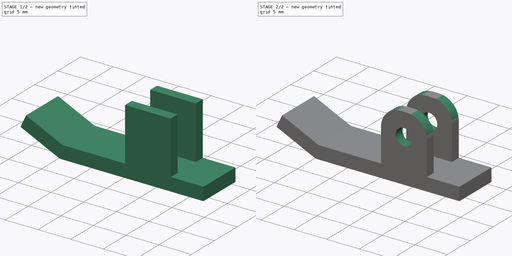
[diagram: build sequence overview — one tinted view per stage of 2, left to right]
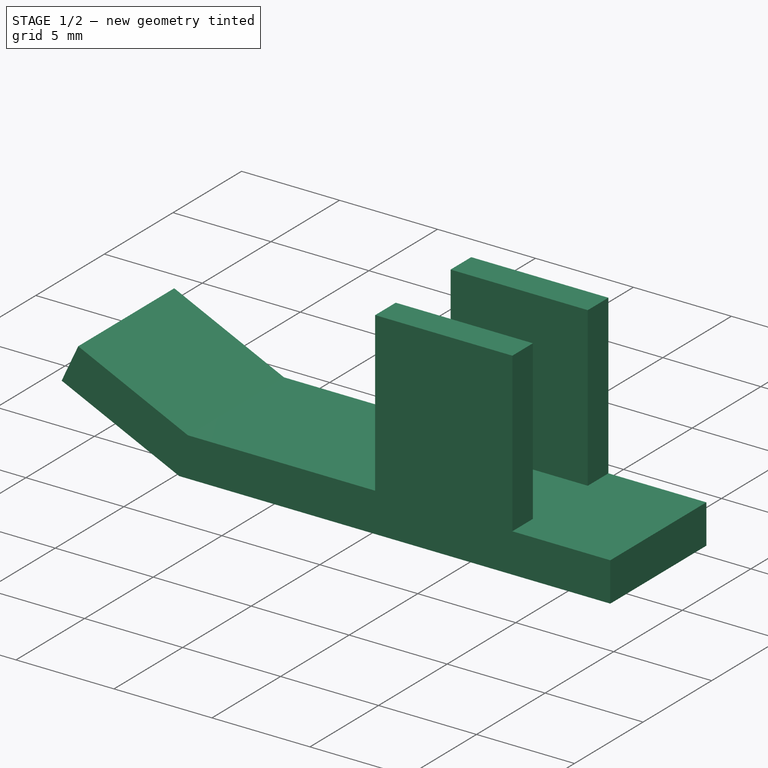
[diagram: stage 1 of 2 — iso view after this stage's code; geometry added in this stage tinted green]
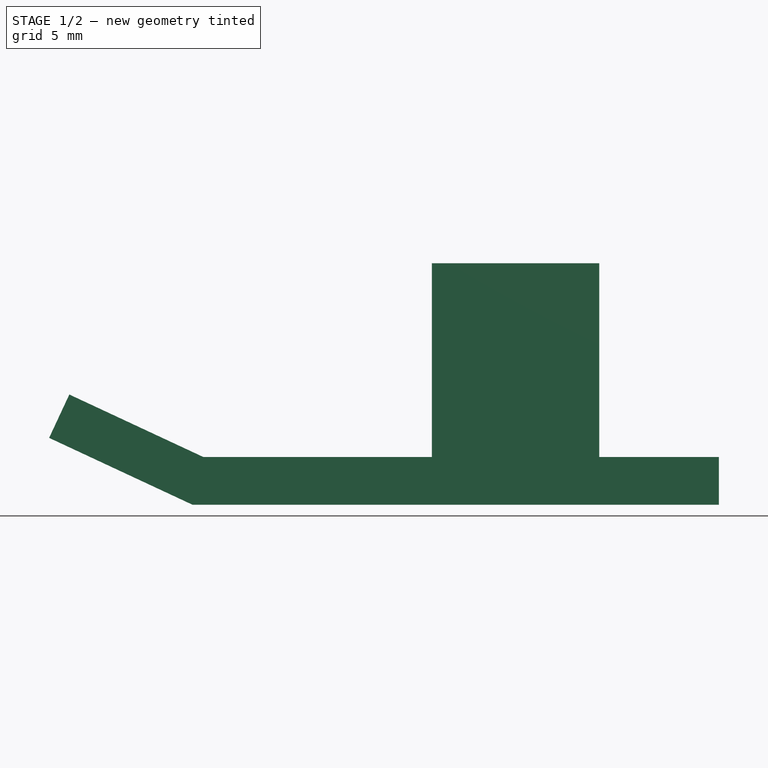
[diagram: stage 1 of 2 — front view after this stage's code; geometry added in this stage tinted green]
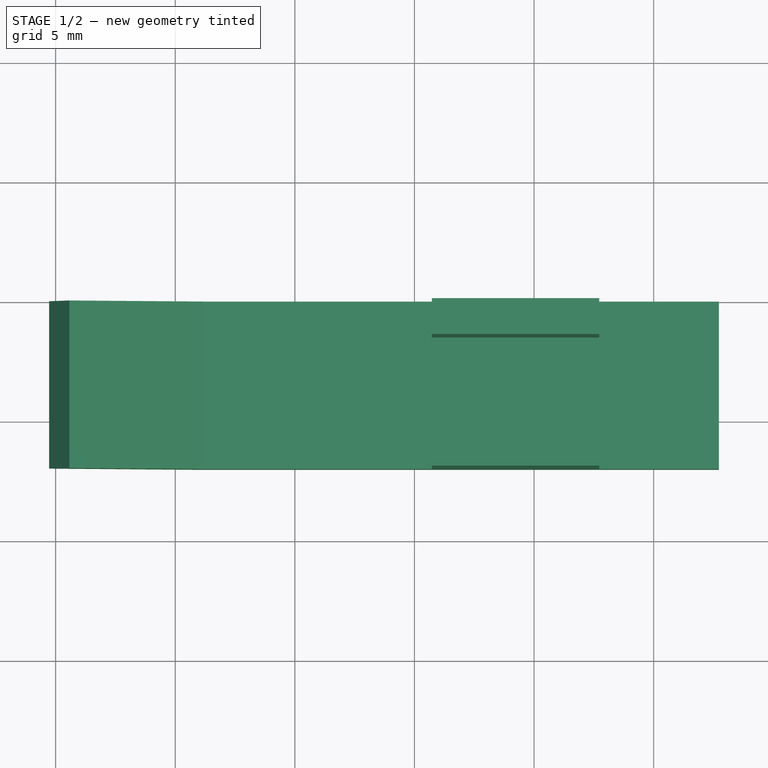
[diagram: stage 1 of 2 — top view after this stage's code; geometry added in this stage tinted green]
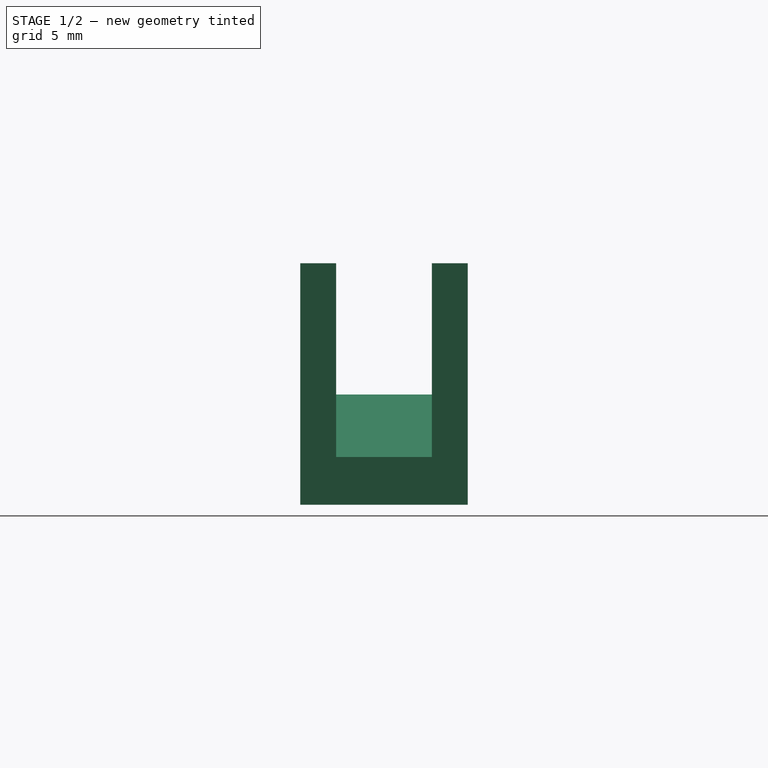
[diagram: stage 1 of 2 — right view after this stage's code; geometry added in this stage tinted green]
FCSTD DOCUMENT  (FreeCAD 0.15R4671 (Git))
Label: Kufen
License: All rights reserved
LicenseURL: http://en.wikipedia.org/wiki/All_rights_reserved
objects: Sketcher::SketchObject×3, PartDesign::Pad×2, PartDesign::Pocket×1, PartDesign::Fillet×1
note: 10 computed .brp shape members not serialized (recipe doc carries the construction recipe); baked Part::Feature solids carry a one-line shape summary decoded from their .brp

FEATURE [Sketcher::SketchObject] Sketch
  Placement = pos=(0,0,0) rot=(-1,0,0;4.71239rad)
  sketch-geometry (6):
    g0: LineSegment StartX=-22.2735 StartY=19.0526 StartZ=0 EndX=-44.2735 EndY=19.0526 EndZ=0
    g1: LineSegment StartX=-44.2735 StartY=19.0526 StartZ=0 EndX=-50.2735 EndY=21.8504 EndZ=0
    g2: LineSegment StartX=-50.2735 StartY=21.8504 StartZ=0 EndX=-49.4283 EndY=23.6631 EndZ=0
    g3: LineSegment StartX=-49.4283 StartY=23.6631 StartZ=0 EndX=-43.8301 EndY=21.0526 EndZ=0
    g4: LineSegment StartX=-43.8301 StartY=21.0526 StartZ=0 EndX=-22.2735 EndY=21.0526 EndZ=0
    g5: LineSegment StartX=-22.2735 StartY=21.0526 StartZ=0 EndX=-22.2735 EndY=19.0526 EndZ=0
  constraints (16):
    c: Horizontal(g0)
    c: Coincident(g0,g1)
    c: Coincident(g1,g2)
    c: Coincident(g2,g3)
    c: Coincident(g3,g4)
    c: Horizontal(g4)
    c: Coincident(g4,g5)
    c: Coincident(g5,g0)
    c: Vertical(g5)
    c: Angle(g2,g3) = 1.5708
    c: Angle(g1,g2) = 1.5708
    c: Angle(g4,g3) = 2.70526
    c: Equal(g2,g5)
    c: DistanceY(g5) = -2
    c: DistanceX(g1) = -6
    c: DistanceX(g0) = -22
FEATURE [PartDesign::Pad] Pad
  Length = 7
  Length2 = 100
  Placement = pos=(0,0,0) rot=(-1,0,0;4.71239rad)
  Sketch = -> Sketch
  Type = 0
FEATURE [Sketcher::SketchObject] Sketch001
  ExternalGeometry = -> [Pad]
  Placement = pos=(0,0,21.0526) rot=(0,0,1;3.14159rad)
  Support = -> Pad [Face5]
  sketch-geometry (11):
    g0: LineSegment StartX=27.2735 StartY=7 StartZ=0 EndX=34.2735 EndY=7 EndZ=0
    g1: LineSegment StartX=34.2735 StartY=7 StartZ=0 EndX=34.2735 EndY=5.5 EndZ=0
    g2: LineSegment StartX=34.2735 StartY=5.5 StartZ=0 EndX=27.2735 EndY=5.5 EndZ=0
    g3: LineSegment StartX=27.2735 StartY=5.5 StartZ=0 EndX=27.2735 EndY=7 EndZ=0
    g4: LineSegment StartX=27.2735 StartY=1.5 StartZ=0 EndX=34.2735 EndY=1.5 EndZ=0
    g5: LineSegment StartX=34.2735 StartY=1.5 StartZ=0 EndX=34.2735 EndY=0 EndZ=0
    g6: LineSegment StartX=34.2735 StartY=0 StartZ=0 EndX=27.2735 EndY=0 EndZ=0
    g7: LineSegment StartX=27.2735 StartY=0 StartZ=0 EndX=27.2735 EndY=1.5 EndZ=0
    g8: LineSegment [constr] StartX=27.2735 StartY=5.5 StartZ=0 EndX=27.2735 EndY=1.5 EndZ=0
    g9: LineSegment StartX=27.2735 StartY=7 StartZ=0 EndX=22.2735 EndY=7 EndZ=0
    g10: LineSegment [constr] StartX=27.2735 StartY=1.5 StartZ=0 EndX=22.2735 EndY=1.5 EndZ=0
  constraints (30):
    c: Coincident(g0,g1)
    c: Coincident(g1,g2)
    c: Coincident(g2,g3)
    c: Coincident(g3,g0)
    c: Horizontal(g0)
    c: Horizontal(g2)
    c: Vertical(g1)
    c: Vertical(g3)
    c: Coincident(g4,g5)
    c: Coincident(g5,g6)
    c: Coincident(g6,g7)
    c: Coincident(g7,g4)
    c: Horizontal(g4)
    c: Horizontal(g6)
    c: Vertical(g5)
    c: Vertical(g7)
    c: Coincident(g8,g2)
    c: Coincident(g8,g4)
    c: Vertical(g8)
    c: DistanceY(g8) = -4
    c: Equal(g7,g3)
    c: Equal(g0,g6)
    c: PointOnObject(g0,g-4)
    c: PointOnObject(g5,g-5)
    c: DistanceX(g2) = -7
    c: Coincident(g9,g0)
    c: Coincident(g10,g4)
    c: PointOnObject(g10,g-3)
    c: Horizontal(g10)
    c: DistanceX(g10) = -5
FEATURE [PartDesign::Pad] Pad001
  Length = 8.1
  Length2 = 100
  Placement = pos=(0,0,0) rot=(-1,0,0;4.71239rad)
  Sketch = -> Sketch001
  Type = 0
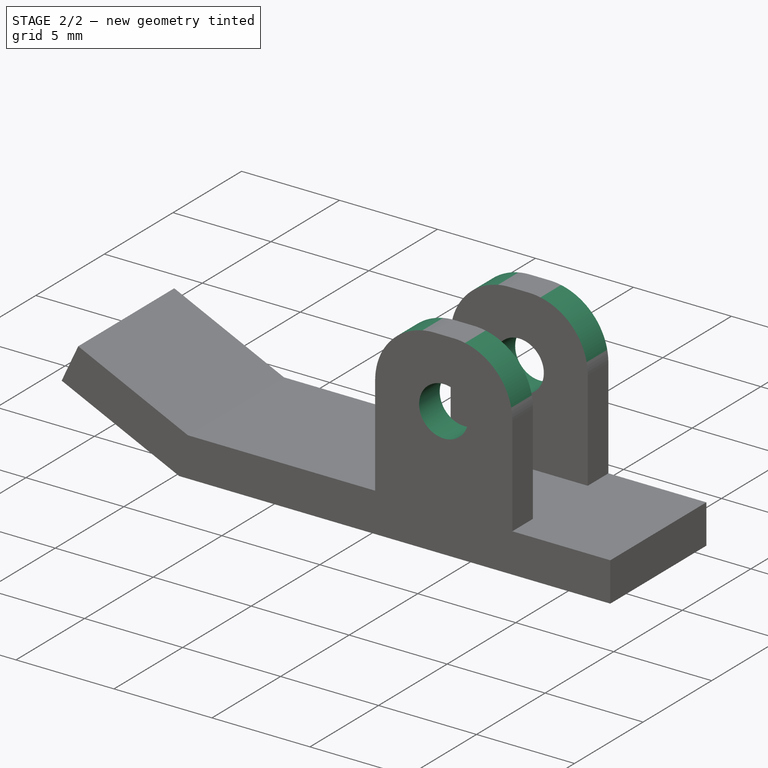
[diagram: stage 2 of 2 — iso view after this stage's code; geometry added in this stage tinted green]
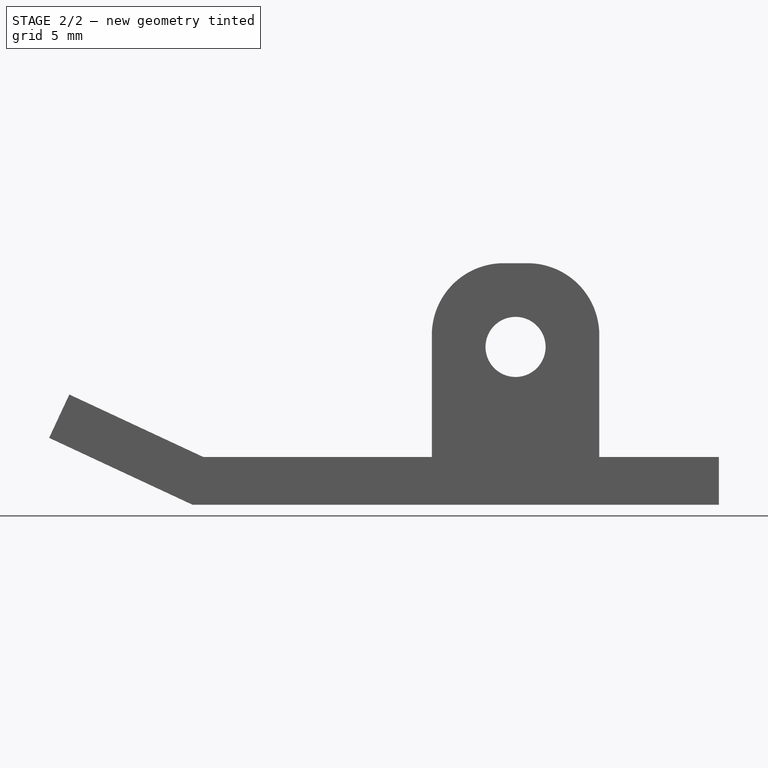
[diagram: stage 2 of 2 — front view after this stage's code; geometry added in this stage tinted green]
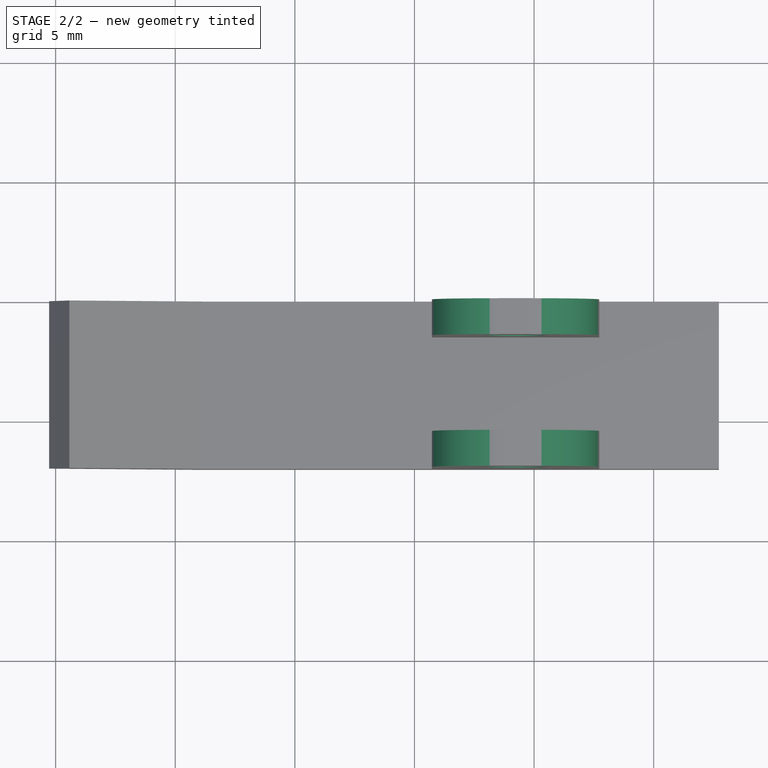
[diagram: stage 2 of 2 — top view after this stage's code; geometry added in this stage tinted green]
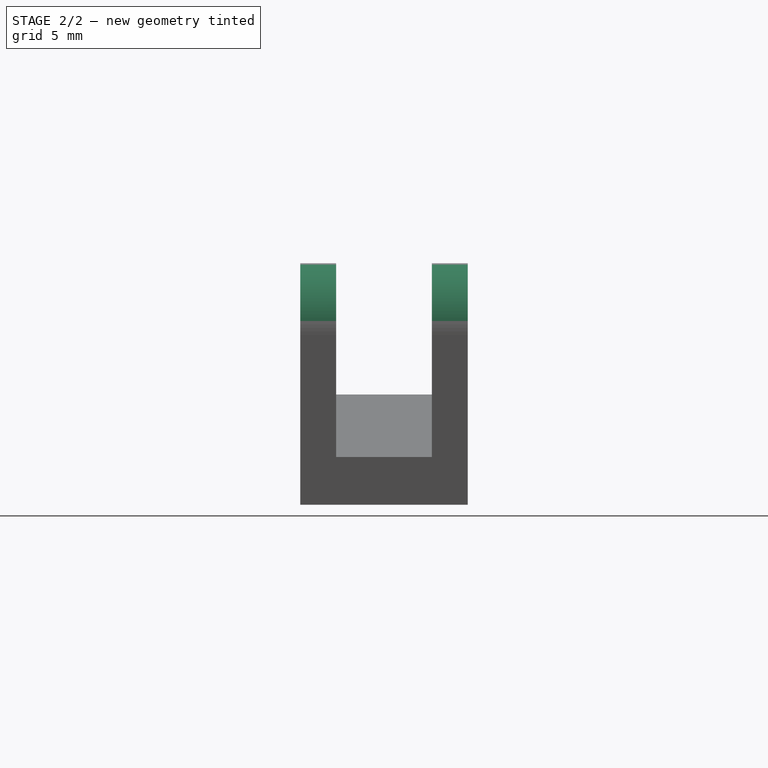
[diagram: stage 2 of 2 — right view after this stage's code; geometry added in this stage tinted green]
FEATURE [Sketcher::SketchObject] Sketch002
  ExternalGeometry = -> [Pad001]
  Placement = pos=(0,-7,0) rot=(1,0,0;1.5708rad)
  Support = -> Pad001 [Face10]
  sketch-geometry (3):
    g0: Circle CenterX=-30.7735 CenterY=25.6526 CenterZ=0 NormalX=0 NormalY=0 NormalZ=1 Radius=1.2561
    g1: LineSegment [constr] StartX=-30.7735 StartY=25.6526 StartZ=0 EndX=-30.7735 EndY=29.1526 EndZ=0
    g2: LineSegment [constr] StartX=-30.7735 StartY=25.6526 StartZ=0 EndX=-34.2735 EndY=25.6526 EndZ=0
  constraints (8):
    c: Coincident(g1,g0)
    c: PointOnObject(g1,g-3)
    c: Vertical(g1)
    c: Coincident(g2,g0)
    c: PointOnObject(g2,g-4)
    c: Horizontal(g2)
    c: DistanceX(g2) = -3.5
    c: DistanceY(g1) = 3.5
FEATURE [PartDesign::Pocket] Pocket
  Length = 10
  Placement = pos=(0,0,0) rot=(-1,0,0;4.71239rad)
  Sketch = -> Sketch002
  Type = 0
FEATURE [PartDesign::Fillet] Fillet
  Base = -> Pocket [Edge38,Edge42,Edge44,Edge48]
  Placement = pos=(0,0,0) rot=(-1,0,0;4.71239rad)
  Radius = 3
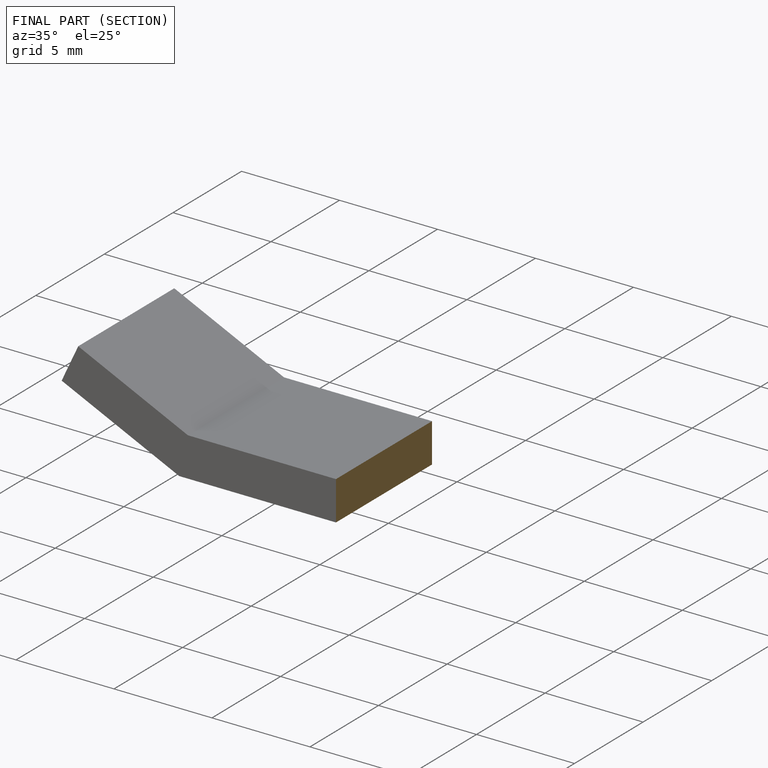
[diagram: finished part — half-section view (interior)]
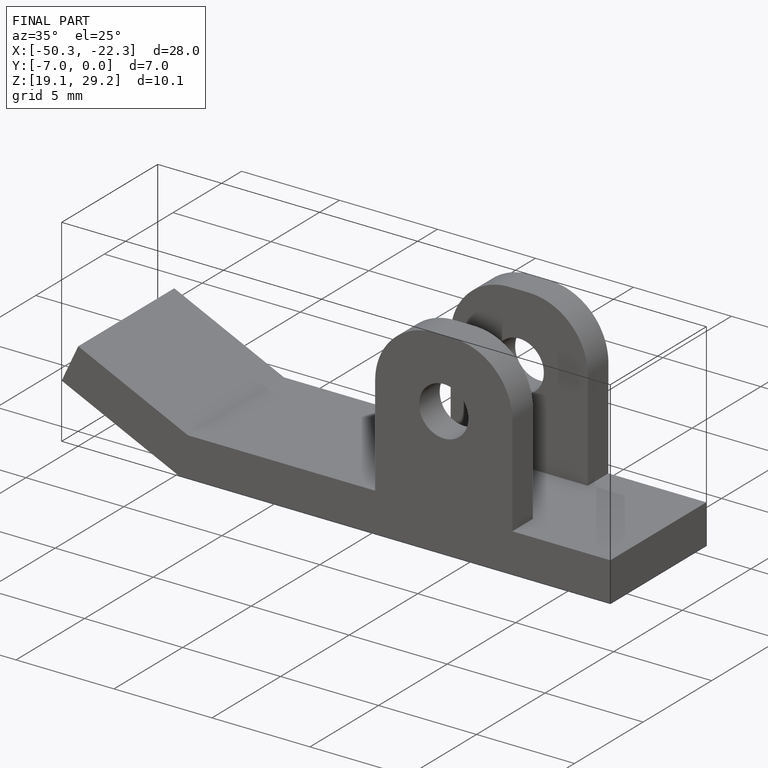
[diagram: finished part — iso view with bounding-box wireframe]
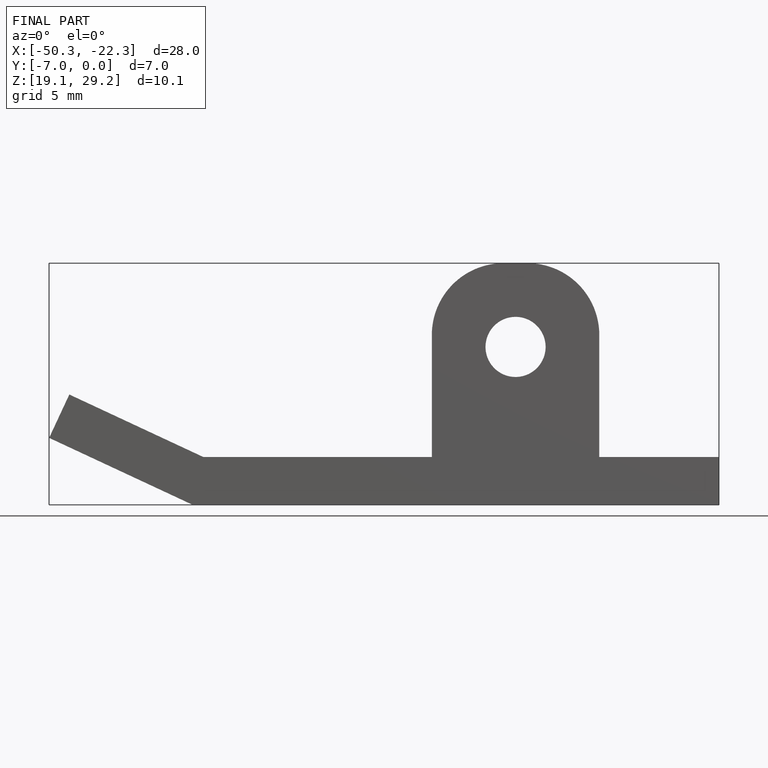
[diagram: finished part — front view with bounding-box wireframe]
